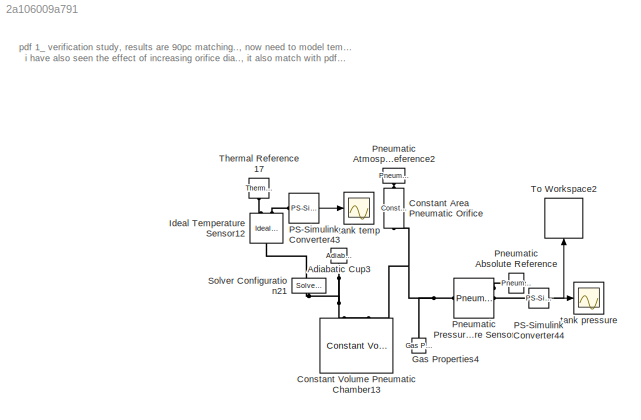
MODEL slx_2a106009a791
KIND model
CONFIG AbsTol = auto
CONFIG FixedStep = auto
CONFIG MaxStep = auto
CONFIG MinStep = auto
CONFIG RelTol = 1e-3
CONFIG SampleTimeConstraint = Unconstrained
CONFIG Solver = VariableStepAuto
CONFIG SolverMode = Auto
CONFIG SolverName = VariableStepAuto
CONFIG StartTime = 0.0
CONFIG StopTime = time
BLOCK [Reference] Adiabatic Cup3  REF=fl_lib/Pneumatic/Pneumatic Elements/Adiabatic Cup
  Ports = [0, 0, 0, 0, 0, 1]
  SourceBlock = fl_lib/Pneumatic/Pneumatic Elements/Adiabatic Cup
  SourceType = Adiabatic Cup
BLOCK [Reference] Constant Area Pneumatic Orifice  REF=fl_lib/Pneumatic/Pneumatic Elements/Constant Area
Pneumatic Orifice
  Ports = [0, 0, 0, 0, 0, 1, 1]
  SourceBlock = fl_lib/Pneumatic/Pneumatic Elements/Constant Area\nPneumatic Orifice
  SourceType = Constant Area\nPneumatic Orifice
BLOCK [Reference] Constant Volume Pneumatic Chamber13  REF=fl_lib/Pneumatic/Pneumatic Elements/Constant Volume
Pneumatic Chamber
  Ports = [0, 0, 0, 0, 0, 2]
  SourceBlock = fl_lib/Pneumatic/Pneumatic Elements/Constant Volume\nPneumatic Chamber
  SourceType = Constant Volume\nPneumatic Chamber
BLOCK [Reference] Gas Properties4  REF=fl_lib/Pneumatic/Pneumatic Utilities/Gas Properties
  Ports = [0, 0, 0, 0, 0, 0, 1]
  SourceBlock = fl_lib/Pneumatic/Pneumatic Utilities/Gas Properties
  SourceType = Gas Properties
BLOCK [Reference] Ideal Temperature Sensor12  REF=fl_lib/Thermal/Thermal Sensors/Ideal Temperature
Sensor
  Ports = [0, 0, 0, 0, 0, 1, 2]
  SourceBlock = fl_lib/Thermal/Thermal Sensors/Ideal Temperature\nSensor
  SourceType = Ideal Temperature\nSensor
BLOCK [Reference] PS-Simulink Converter43  REF=nesl_utility/PS-Simulink
Converter
  Ports = [0, 1, 0, 0, 0, 1]
  SourceBlock = nesl_utility/PS-Simulink\nConverter
  SourceType = PS-Simulink\nConverter
BLOCK [Reference] PS-Simulink Converter44  REF=nesl_utility/PS-Simulink
Converter
  Ports = [0, 1, 0, 0, 0, 1]
  SourceBlock = nesl_utility/PS-Simulink\nConverter
  SourceType = PS-Simulink\nConverter
BLOCK [Reference] Pneumatic Absolute Reference  REF=fl_lib/Pneumatic/Pneumatic Elements/Pneumatic Absolute
Reference
  Ports = [0, 0, 0, 0, 0, 1]
  SourceBlock = fl_lib/Pneumatic/Pneumatic Elements/Pneumatic Absolute\nReference
  SourceType = Pneumatic Absolute\nReference
BLOCK [Reference] Pneumatic Atmospheric Reference2  REF=fl_lib/Pneumatic/Pneumatic Elements/Pneumatic
Atmospheric
Reference
  Ports = [0, 0, 0, 0, 0, 1]
  SourceBlock = fl_lib/Pneumatic/Pneumatic Elements/Pneumatic\nAtmospheric\nReference
  SourceType = Pneumatic\nAtmospheric\nReference
BLOCK [Reference] Pneumatic Pressure & Temperature Sensor  REF=fl_lib/Pneumatic/Pneumatic Sensors/Pneumatic Pressure &
Temperature Sensor
  Ports = [0, 0, 0, 0, 0, 1, 3]
  SourceBlock = fl_lib/Pneumatic/Pneumatic Sensors/Pneumatic Pressure &\nTemperature Sensor
  SourceType = Pneumatic Pressure &\nTemperature Sensor
BLOCK [Reference] Solver Configuration21  REF=nesl_utility/Solver
Configuration
  Ports = [0, 0, 0, 0, 0, 0, 1]
  SourceBlock = nesl_utility/Solver\nConfiguration
  SourceType = Solver\nConfiguration
BLOCK [Reference] Thermal Reference17  REF=fl_lib/Thermal/Thermal Elements/Thermal Reference
  Ports = [0, 0, 0, 0, 0, 1]
  SourceBlock = fl_lib/Thermal/Thermal Elements/Thermal Reference
  SourceType = Thermal Reference
BLOCK [ToWorkspace] To Workspace2
  FixptAsFi = on
  MaxDataPoints = inf
  Ports = [1]
  SampleTime = time_step
  Save2DSignal = 3-D array (concatenate along third dimension)
  SaveFormat = Structure With Time
  VariableName = sim
BLOCK [Scope] tank pressure
  Ports = [1]
  ScopeSpecificationString = C++SS(StrPVP('SaveName','ScopeData2'),StrPVP('LimitDataPoints','on'),StrPVP('DataFormat','Array'),StrPVP('Decimation','1'),StrPVP('BlockParamSampleInput','off'))
BLOCK [Scope] tank temp 
  Ports = [1]
  ScopeSpecificationString = C++SS(StrPVP('SaveName','ScopeData1'),StrPVP('LimitDataPoints','on'),StrPVP('DataFormat','Array'),StrPVP('Decimation','1'),StrPVP('BlockParamSampleInput','off'))
ANNOTATION (root): pdf 1_ verification study, results are 90pc matching.., now need to model temperature conditions more a/c to the paper.... i have also seen the effect of increasing orifice dia.., it also match with pdf.., specificially pressure profile
LINE PS-Simulink Converter43:1 -> tank temp :1
NET PS-Simulink Converter44:1 -> To Workspace2:1, tank pressure:1
PNET net1: Adiabatic Cup3:LConn1 -- Constant Volume Pneumatic Chamber13:LConn2 -- Ideal Temperature Sensor12:LConn1 -- Solver Configuration21:RConn1
PNET net2: Constant Area Pneumatic Orifice:LConn1 -- Constant Volume Pneumatic Chamber13:LConn1 -- Gas Properties4:RConn1 -- Pneumatic Pressure & Temperature Sensor:LConn1
PLINE Constant Area Pneumatic Orifice:RConn1 -- Pneumatic Atmospheric Reference2:LConn1
PLINE Ideal Temperature Sensor12:RConn1 -- Thermal Reference17:LConn1
PLINE Ideal Temperature Sensor12:RConn2 -- PS-Simulink Converter43:LConn1
PLINE PS-Simulink Converter44:LConn1 -- Pneumatic Pressure & Temperature Sensor:RConn2
PLINE Pneumatic Absolute Reference:LConn1 -- Pneumatic Pressure & Temperature Sensor:RConn1
note: NET lines group one-source signal fan-out (src -> all destinations, sorted); 1:1 wires keep LINE; PNET lines group multi-terminal physical nets as a canonical sorted terminal list (undirected conserving connections); 2-terminal nets keep the pairwise PLINE form
